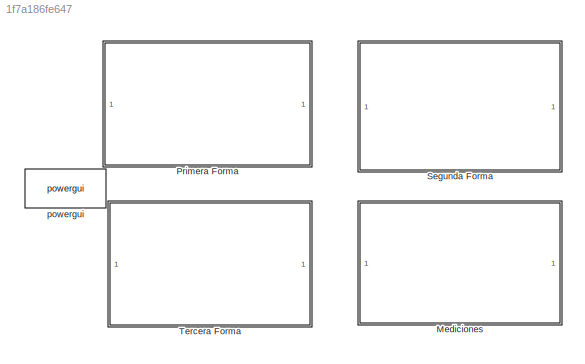
MODEL slx_1f7a186fe647
KIND model
CONFIG AbsTol = auto
CONFIG EnableMultiTasking = off
CONFIG FixedStep = auto
CONFIG MaxStep = auto
CONFIG MinStep = auto
CONFIG RelTol = 1e-3
CONFIG SampleTimeConstraint = Unconstrained
CONFIG SolverName = VariableStepAuto
CONFIG StartTime = 0.0
CONFIG StopTime = 10/60
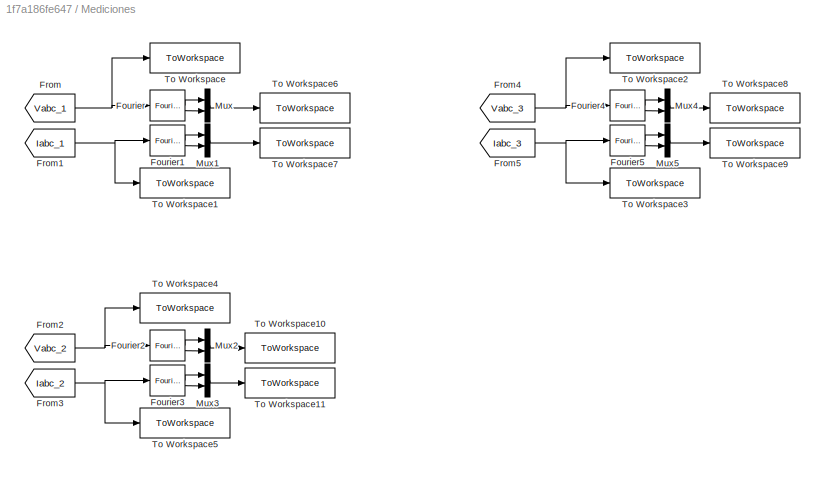
BLOCK [SubSystem] Mediciones
BLOCK [Reference] Mediciones/Fourier  REF=spsFourierLib/Fourier
  LibrarySourceBlock = sps_lib/Sensors and Measurements/Fourier
  SourceBlock = spsFourierLib/Fourier
  SourceType = Fourier
BLOCK [Reference] Mediciones/Fourier1  REF=spsFourierLib/Fourier
  LibrarySourceBlock = sps_lib/Sensors and Measurements/Fourier
  SourceBlock = spsFourierLib/Fourier
  SourceType = Fourier
BLOCK [Reference] Mediciones/Fourier2  REF=spsFourierLib/Fourier
  LibrarySourceBlock = sps_lib/Sensors and Measurements/Fourier
  SourceBlock = spsFourierLib/Fourier
  SourceType = Fourier
BLOCK [Reference] Mediciones/Fourier3  REF=spsFourierLib/Fourier
  LibrarySourceBlock = sps_lib/Sensors and Measurements/Fourier
  SourceBlock = spsFourierLib/Fourier
  SourceType = Fourier
BLOCK [Reference] Mediciones/Fourier4  REF=spsFourierLib/Fourier
  LibrarySourceBlock = sps_lib/Sensors and Measurements/Fourier
  SourceBlock = spsFourierLib/Fourier
  SourceType = Fourier
BLOCK [Reference] Mediciones/Fourier5  REF=spsFourierLib/Fourier
  LibrarySourceBlock = sps_lib/Sensors and Measurements/Fourier
  SourceBlock = spsFourierLib/Fourier
  SourceType = Fourier
BLOCK [From] Mediciones/From
  GotoTag = Vabc_1
  TagVisibility = global
BLOCK [From] Mediciones/From1
  GotoTag = Iabc_1
  TagVisibility = global
BLOCK [From] Mediciones/From2
  GotoTag = Vabc_2
  TagVisibility = global
BLOCK [From] Mediciones/From3
  GotoTag = Iabc_2
  TagVisibility = global
BLOCK [From] Mediciones/From4
  GotoTag = Vabc_3
  TagVisibility = global
BLOCK [From] Mediciones/From5
  GotoTag = Iabc_3
  TagVisibility = global
BLOCK [Mux] Mediciones/Mux
  DisplayOption = bar
  Inputs = 2
BLOCK [Mux] Mediciones/Mux1
  DisplayOption = bar
  Inputs = 2
BLOCK [Mux] Mediciones/Mux2
  DisplayOption = bar
  Inputs = 2
BLOCK [Mux] Mediciones/Mux3
  DisplayOption = bar
  Inputs = 2
BLOCK [Mux] Mediciones/Mux4
  DisplayOption = bar
  Inputs = 2
BLOCK [Mux] Mediciones/Mux5
  DisplayOption = bar
  Inputs = 2
BLOCK [ToWorkspace] Mediciones/To Workspace
  FixptAsFi = on
  MaxDataPoints = inf
  SampleTime = -1
  SaveFormat = Timeseries
  VariableName = Vabc_1
BLOCK [ToWorkspace] Mediciones/To Workspace1
  FixptAsFi = on
  MaxDataPoints = inf
  SampleTime = -1
  SaveFormat = Timeseries
  VariableName = Iabc_1
BLOCK [ToWorkspace] Mediciones/To Workspace10
  FixptAsFi = on
  MaxDataPoints = inf
  SampleTime = -1
  SaveFormat = Timeseries
  VariableName = Vabc_2_ph
BLOCK [ToWorkspace] Mediciones/To Workspace11
  FixptAsFi = on
  MaxDataPoints = inf
  SampleTime = -1
  SaveFormat = Timeseries
  VariableName = Iabc_2_ph
BLOCK [ToWorkspace] Mediciones/To Workspace2
  FixptAsFi = on
  MaxDataPoints = inf
  SampleTime = -1
  SaveFormat = Timeseries
  VariableName = Vabc_3
BLOCK [ToWorkspace] Mediciones/To Workspace3
  FixptAsFi = on
  MaxDataPoints = inf
  SampleTime = -1
  SaveFormat = Timeseries
  VariableName = Iabc_3
BLOCK [ToWorkspace] Mediciones/To Workspace4
  FixptAsFi = on
  MaxDataPoints = inf
  SampleTime = -1
  SaveFormat = Timeseries
  VariableName = Vabc_2
BLOCK [ToWorkspace] Mediciones/To Workspace5
  FixptAsFi = on
  MaxDataPoints = inf
  SampleTime = -1
  SaveFormat = Timeseries
  VariableName = Iabc_2
BLOCK [ToWorkspace] Mediciones/To Workspace6
  FixptAsFi = on
  MaxDataPoints = inf
  SampleTime = -1
  SaveFormat = Timeseries
  VariableName = Vabc_1_ph
BLOCK [ToWorkspace] Mediciones/To Workspace7
  FixptAsFi = on
  MaxDataPoints = inf
  SampleTime = -1
  SaveFormat = Timeseries
  VariableName = Iabc_1_ph
BLOCK [ToWorkspace] Mediciones/To Workspace8
  FixptAsFi = on
  MaxDataPoints = inf
  SampleTime = -1
  SaveFormat = Timeseries
  VariableName = Vabc_3_ph
BLOCK [ToWorkspace] Mediciones/To Workspace9
  FixptAsFi = on
  MaxDataPoints = inf
  SampleTime = -1
  SaveFormat = Timeseries
  VariableName = Iabc_3_ph
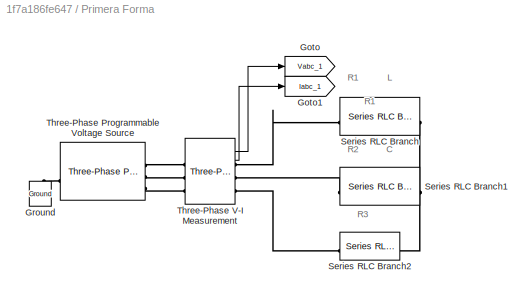
BLOCK [SubSystem] Primera Forma
BLOCK [Goto] Primera Forma/Goto
  GotoTag = Vabc_1
  TagVisibility = global
BLOCK [Goto] Primera Forma/Goto1
  GotoTag = Iabc_1
  TagVisibility = global
BLOCK [Reference] Primera Forma/Ground  REF=spsGroundLib/Ground
  LibrarySourceBlock = sps_lib/Utilities/Ground
  NameLocation = right
  SourceBlock = spsGroundLib/Ground
  SourceType = Ground
BLOCK [Reference] Primera Forma/Series RLC Branch  REF=spsSeriesRLCBranchLib/Series RLC Branch
  LibrarySourceBlock = sps_lib/Passives/Series RLC Branch
  SourceBlock = spsSeriesRLCBranchLib/Series RLC Branch
  SourceType = Series RLC Branch
BLOCK [Reference] Primera Forma/Series RLC Branch1  REF=spsSeriesRLCBranchLib/Series RLC Branch
  LibrarySourceBlock = sps_lib/Passives/Series RLC Branch
  SourceBlock = spsSeriesRLCBranchLib/Series RLC Branch
  SourceType = Series RLC Branch
BLOCK [Reference] Primera Forma/Series RLC Branch2  REF=spsSeriesRLCBranchLib/Series RLC Branch
  LibrarySourceBlock = sps_lib/Passives/Series RLC Branch
  SourceBlock = spsSeriesRLCBranchLib/Series RLC Branch
  SourceType = Series RLC Branch
BLOCK [Reference] Primera Forma/Three-Phase Programmable Voltage Source  REF=spsThreePhaseProgrammableVoltageSourceLib/Three-Phase
Programmable
Voltage Source
  LibrarySourceBlock = sps_lib/Sources/Three-Phase\nProgrammable\nVoltage Source
  SourceBlock = spsThreePhaseProgrammableVoltageSourceLib/Three-Phase\nProgrammable\nVoltage Source
  SourceType = Three-Phase Programmable Voltage Source
BLOCK [Reference] Primera Forma/Three-Phase V-I Measurement  REF=spsThreePhaseVIMeasurementLib/Three-Phase
V-I Measurement
  LibrarySourceBlock = sps_lib/Sensors and Measurements/Three-Phase\nV-I Measurement
  SourceBlock = spsThreePhaseVIMeasurementLib/Three-Phase\nV-I Measurement
  SourceType = Three-Phase VI Measurement
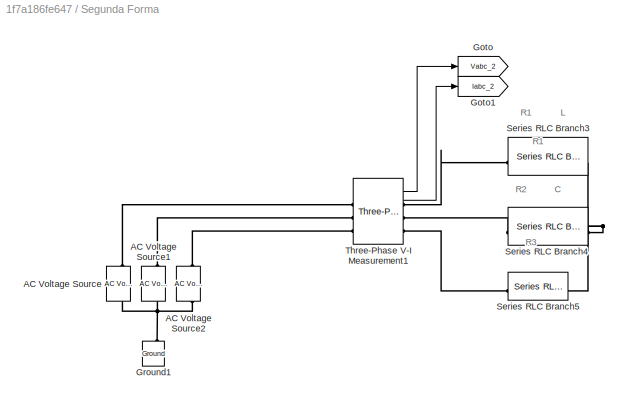
BLOCK [SubSystem] Segunda Forma
BLOCK [Reference] Segunda Forma/AC Voltage Source  REF=spsACVoltageSourceLib/AC Voltage Source
  LibrarySourceBlock = sps_lib/Sources/AC Voltage Source
  SourceBlock = spsACVoltageSourceLib/AC Voltage Source
  SourceType = AC Voltage Source
BLOCK [Reference] Segunda Forma/AC Voltage Source1  REF=spsACVoltageSourceLib/AC Voltage Source
  LibrarySourceBlock = sps_lib/Sources/AC Voltage Source
  SourceBlock = spsACVoltageSourceLib/AC Voltage Source
  SourceType = AC Voltage Source
BLOCK [Reference] Segunda Forma/AC Voltage Source2  REF=spsACVoltageSourceLib/AC Voltage Source
  LibrarySourceBlock = sps_lib/Sources/AC Voltage Source
  SourceBlock = spsACVoltageSourceLib/AC Voltage Source
  SourceType = AC Voltage Source
BLOCK [Goto] Segunda Forma/Goto
  GotoTag = Vabc_2
  TagVisibility = global
BLOCK [Goto] Segunda Forma/Goto1
  GotoTag = Iabc_2
  TagVisibility = global
BLOCK [Reference] Segunda Forma/Ground1  REF=spsGroundLib/Ground
  LibrarySourceBlock = sps_lib/Utilities/Ground
  NameLocation = right
  SourceBlock = spsGroundLib/Ground
  SourceType = Ground
BLOCK [Reference] Segunda Forma/Series RLC Branch3  REF=spsSeriesRLCBranchLib/Series RLC Branch
  LibrarySourceBlock = sps_lib/Passives/Series RLC Branch
  SourceBlock = spsSeriesRLCBranchLib/Series RLC Branch
  SourceType = Series RLC Branch
BLOCK [Reference] Segunda Forma/Series RLC Branch4  REF=spsSeriesRLCBranchLib/Series RLC Branch
  LibrarySourceBlock = sps_lib/Passives/Series RLC Branch
  SourceBlock = spsSeriesRLCBranchLib/Series RLC Branch
  SourceType = Series RLC Branch
BLOCK [Reference] Segunda Forma/Series RLC Branch5  REF=spsSeriesRLCBranchLib/Series RLC Branch
  LibrarySourceBlock = sps_lib/Passives/Series RLC Branch
  SourceBlock = spsSeriesRLCBranchLib/Series RLC Branch
  SourceType = Series RLC Branch
BLOCK [Reference] Segunda Forma/Three-Phase V-I Measurement1  REF=spsThreePhaseVIMeasurementLib/Three-Phase
V-I Measurement
  LibrarySourceBlock = sps_lib/Sensors and Measurements/Three-Phase\nV-I Measurement
  SourceBlock = spsThreePhaseVIMeasurementLib/Three-Phase\nV-I Measurement
  SourceType = Three-Phase VI Measurement
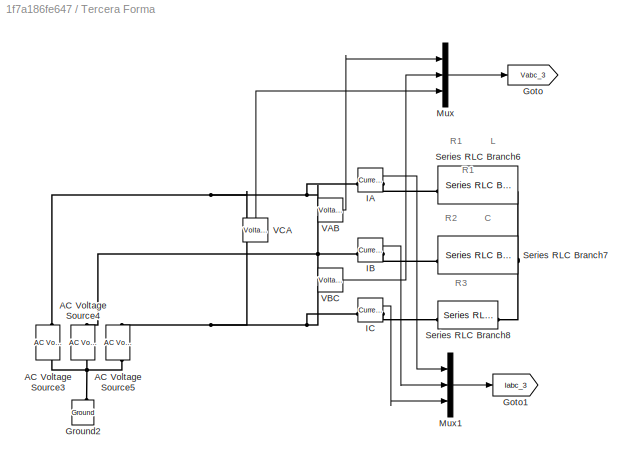
BLOCK [SubSystem] Tercera Forma
BLOCK [Reference] Tercera Forma/AC Voltage Source3  REF=spsACVoltageSourceLib/AC Voltage Source
  LibrarySourceBlock = sps_lib/Sources/AC Voltage Source
  SourceBlock = spsACVoltageSourceLib/AC Voltage Source
  SourceType = AC Voltage Source
BLOCK [Reference] Tercera Forma/AC Voltage Source4  REF=spsACVoltageSourceLib/AC Voltage Source
  LibrarySourceBlock = sps_lib/Sources/AC Voltage Source
  SourceBlock = spsACVoltageSourceLib/AC Voltage Source
  SourceType = AC Voltage Source
BLOCK [Reference] Tercera Forma/AC Voltage Source5  REF=spsACVoltageSourceLib/AC Voltage Source
  LibrarySourceBlock = sps_lib/Sources/AC Voltage Source
  SourceBlock = spsACVoltageSourceLib/AC Voltage Source
  SourceType = AC Voltage Source
BLOCK [Goto] Tercera Forma/Goto
  GotoTag = Vabc_3
  TagVisibility = global
BLOCK [Goto] Tercera Forma/Goto1
  GotoTag = Iabc_3
  TagVisibility = global
BLOCK [Reference] Tercera Forma/Ground2  REF=spsGroundLib/Ground
  LibrarySourceBlock = sps_lib/Utilities/Ground
  NameLocation = right
  SourceBlock = spsGroundLib/Ground
  SourceType = Ground
BLOCK [Reference] Tercera Forma/IA  REF=spsCurrentMeasurementLib/Current Measurement
  LibrarySourceBlock = sps_lib/Sensors and Measurements/Current Measurement
  SourceBlock = spsCurrentMeasurementLib/Current Measurement
  SourceType = Current Measurement
  UserDataPersistent = on
BLOCK [Reference] Tercera Forma/IB  REF=spsCurrentMeasurementLib/Current Measurement
  LibrarySourceBlock = sps_lib/Sensors and Measurements/Current Measurement
  SourceBlock = spsCurrentMeasurementLib/Current Measurement
  SourceType = Current Measurement
  UserDataPersistent = on
BLOCK [Reference] Tercera Forma/IC  REF=spsCurrentMeasurementLib/Current Measurement
  LibrarySourceBlock = sps_lib/Sensors and Measurements/Current Measurement
  SourceBlock = spsCurrentMeasurementLib/Current Measurement
  SourceType = Current Measurement
  UserDataPersistent = on
BLOCK [Mux] Tercera Forma/Mux
  DisplayOption = bar
  Inputs = 3
BLOCK [Mux] Tercera Forma/Mux1
  DisplayOption = bar
  Inputs = 3
BLOCK [Reference] Tercera Forma/Series RLC Branch6  REF=spsSeriesRLCBranchLib/Series RLC Branch
  LibrarySourceBlock = sps_lib/Passives/Series RLC Branch
  SourceBlock = spsSeriesRLCBranchLib/Series RLC Branch
  SourceType = Series RLC Branch
BLOCK [Reference] Tercera Forma/Series RLC Branch7  REF=spsSeriesRLCBranchLib/Series RLC Branch
  LibrarySourceBlock = sps_lib/Passives/Series RLC Branch
  SourceBlock = spsSeriesRLCBranchLib/Series RLC Branch
  SourceType = Series RLC Branch
BLOCK [Reference] Tercera Forma/Series RLC Branch8  REF=spsSeriesRLCBranchLib/Series RLC Branch
  LibrarySourceBlock = sps_lib/Passives/Series RLC Branch
  SourceBlock = spsSeriesRLCBranchLib/Series RLC Branch
  SourceType = Series RLC Branch
BLOCK [Reference] Tercera Forma/VAB  REF=spsVoltageMeasurementLib/Voltage Measurement
  LibrarySourceBlock = sps_lib/Sensors and Measurements/Voltage Measurement
  SourceBlock = spsVoltageMeasurementLib/Voltage Measurement
  SourceType = Voltage Measurement
  UserDataPersistent = on
BLOCK [Reference] Tercera Forma/VBC  REF=spsVoltageMeasurementLib/Voltage Measurement
  LibrarySourceBlock = sps_lib/Sensors and Measurements/Voltage Measurement
  SourceBlock = spsVoltageMeasurementLib/Voltage Measurement
  SourceType = Voltage Measurement
  UserDataPersistent = on
BLOCK [Reference] Tercera Forma/VCA  REF=spsVoltageMeasurementLib/Voltage Measurement
  LibrarySourceBlock = sps_lib/Sensors and Measurements/Voltage Measurement
  SourceBlock = spsVoltageMeasurementLib/Voltage Measurement
  SourceType = Voltage Measurement
  UserDataPersistent = on
BLOCK [Reference] powergui  REF=sps_lib/powergui
  Priority = 1
  SourceBlock = sps_lib/powergui
  SourceType = PSB option menu block
ANNOTATION Primera Forma: C
ANNOTATION Primera Forma: L
ANNOTATION Primera Forma: R1
ANNOTATION Primera Forma: R2
ANNOTATION Primera Forma: R3
ANNOTATION Segunda Forma: C
ANNOTATION Segunda Forma: L
ANNOTATION Segunda Forma: R1
ANNOTATION Segunda Forma: R2
ANNOTATION Segunda Forma: R3
ANNOTATION Tercera Forma: C
ANNOTATION Tercera Forma: L
ANNOTATION Tercera Forma: R1
ANNOTATION Tercera Forma: R2
ANNOTATION Tercera Forma: R3
LINE Mediciones/Fourier1:1 -> Mediciones/Mux1:1
LINE Mediciones/Fourier1:2 -> Mediciones/Mux1:2
LINE Mediciones/Fourier2:1 -> Mediciones/Mux2:1
LINE Mediciones/Fourier2:2 -> Mediciones/Mux2:2
LINE Mediciones/Fourier3:1 -> Mediciones/Mux3:1
LINE Mediciones/Fourier3:2 -> Mediciones/Mux3:2
LINE Mediciones/Fourier4:1 -> Mediciones/Mux4:1
LINE Mediciones/Fourier4:2 -> Mediciones/Mux4:2
LINE Mediciones/Fourier5:1 -> Mediciones/Mux5:1
LINE Mediciones/Fourier5:2 -> Mediciones/Mux5:2
LINE Mediciones/Fourier:1 -> Mediciones/Mux:1
LINE Mediciones/Fourier:2 -> Mediciones/Mux:2
NET Mediciones/From1:1 -> Mediciones/Fourier1:1, Mediciones/To Workspace1:1
NET Mediciones/From2:1 -> Mediciones/Fourier2:1, Mediciones/To Workspace4:1
NET Mediciones/From3:1 -> Mediciones/Fourier3:1, Mediciones/To Workspace5:1
NET Mediciones/From4:1 -> Mediciones/Fourier4:1, Mediciones/To Workspace2:1
NET Mediciones/From5:1 -> Mediciones/Fourier5:1, Mediciones/To Workspace3:1
NET Mediciones/From:1 -> Mediciones/Fourier:1, Mediciones/To Workspace:1
LINE Mediciones/Mux1:1 -> Mediciones/To Workspace7:1
LINE Mediciones/Mux2:1 -> Mediciones/To Workspace10:1
LINE Mediciones/Mux3:1 -> Mediciones/To Workspace11:1
LINE Mediciones/Mux4:1 -> Mediciones/To Workspace8:1
LINE Mediciones/Mux5:1 -> Mediciones/To Workspace9:1
LINE Mediciones/Mux:1 -> Mediciones/To Workspace6:1
LINE Primera Forma/Three-Phase V-I Measurement:1 -> Primera Forma/Goto:1
LINE Primera Forma/Three-Phase V-I Measurement:2 -> Primera Forma/Goto1:1
LINE Segunda Forma/Three-Phase V-I Measurement1:1 -> Segunda Forma/Goto:1
LINE Segunda Forma/Three-Phase V-I Measurement1:2 -> Segunda Forma/Goto1:1
LINE Tercera Forma/IA:1 -> Tercera Forma/Mux1:1
LINE Tercera Forma/IB:1 -> Tercera Forma/Mux1:2
LINE Tercera Forma/IC:1 -> Tercera Forma/Mux1:3
LINE Tercera Forma/Mux1:1 -> Tercera Forma/Goto1:1
LINE Tercera Forma/Mux:1 -> Tercera Forma/Goto:1
LINE Tercera Forma/VAB:1 -> Tercera Forma/Mux:1
LINE Tercera Forma/VBC:1 -> Tercera Forma/Mux:2
LINE Tercera Forma/VCA:1 -> Tercera Forma/Mux:3
PLINE Primera Forma/Ground:LConn1 -- Primera Forma/Three-Phase Programmable Voltage Source:LConn1
PLINE Primera Forma/Series RLC Branch1:LConn1 -- Primera Forma/Three-Phase V-I Measurement:RConn2
PNET net1: Primera Forma/Series RLC Branch1:RConn1 -- Primera Forma/Series RLC Branch2:RConn1 -- Primera Forma/Series RLC Branch:RConn1
PLINE Primera Forma/Series RLC Branch2:LConn1 -- Primera Forma/Three-Phase V-I Measurement:RConn3
PLINE Primera Forma/Series RLC Branch:LConn1 -- Primera Forma/Three-Phase V-I Measurement:RConn1
PLINE Primera Forma/Three-Phase Programmable Voltage Source:RConn1 -- Primera Forma/Three-Phase V-I Measurement:LConn1
PLINE Primera Forma/Three-Phase Programmable Voltage Source:RConn2 -- Primera Forma/Three-Phase V-I Measurement:LConn2
PLINE Primera Forma/Three-Phase Programmable Voltage Source:RConn3 -- Primera Forma/Three-Phase V-I Measurement:LConn3
PNET net2: Segunda Forma/AC Voltage Source1:LConn1 -- Segunda Forma/AC Voltage Source2:LConn1 -- Segunda Forma/AC Voltage Source:LConn1 -- Segunda Forma/Ground1:LConn1
PLINE Segunda Forma/AC Voltage Source1:RConn1 -- Segunda Forma/Three-Phase V-I Measurement1:LConn2
PLINE Segunda Forma/AC Voltage Source2:RConn1 -- Segunda Forma/Three-Phase V-I Measurement1:LConn3
PLINE Segunda Forma/AC Voltage Source:RConn1 -- Segunda Forma/Three-Phase V-I Measurement1:LConn1
PLINE Segunda Forma/Series RLC Branch3:LConn1 -- Segunda Forma/Three-Phase V-I Measurement1:RConn1
PNET net3: Segunda Forma/Series RLC Branch3:RConn1 -- Segunda Forma/Series RLC Branch4:RConn1 -- Segunda Forma/Series RLC Branch5:RConn1
PLINE Segunda Forma/Series RLC Branch4:LConn1 -- Segunda Forma/Three-Phase V-I Measurement1:RConn2
PLINE Segunda Forma/Series RLC Branch5:LConn1 -- Segunda Forma/Three-Phase V-I Measurement1:RConn3
PNET net4: Tercera Forma/AC Voltage Source3:LConn1 -- Tercera Forma/AC Voltage Source4:LConn1 -- Tercera Forma/AC Voltage Source5:LConn1 -- Tercera Forma/Ground2:LConn1
PNET net5: Tercera Forma/AC Voltage Source3:RConn1 -- Tercera Forma/IA:LConn1 -- Tercera Forma/VAB:LConn1 -- Tercera Forma/VCA:LConn2
PNET net6: Tercera Forma/AC Voltage Source4:RConn1 -- Tercera Forma/IB:LConn1 -- Tercera Forma/VAB:LConn2 -- Tercera Forma/VBC:LConn1
PNET net7: Tercera Forma/AC Voltage Source5:RConn1 -- Tercera Forma/IC:LConn1 -- Tercera Forma/VBC:LConn2 -- Tercera Forma/VCA:LConn1
PLINE Tercera Forma/IA:RConn1 -- Tercera Forma/Series RLC Branch6:LConn1
PLINE Tercera Forma/IB:RConn1 -- Tercera Forma/Series RLC Branch7:LConn1
PLINE Tercera Forma/IC:RConn1 -- Tercera Forma/Series RLC Branch8:LConn1
PNET net8: Tercera Forma/Series RLC Branch6:RConn1 -- Tercera Forma/Series RLC Branch7:RConn1 -- Tercera Forma/Series RLC Branch8:RConn1
note: NET lines group one-source signal fan-out (src -> all destinations, sorted); 1:1 wires keep LINE; PNET lines group multi-terminal physical nets as a canonical sorted terminal list (undirected conserving connections); 2-terminal nets keep the pairwise PLINE form
